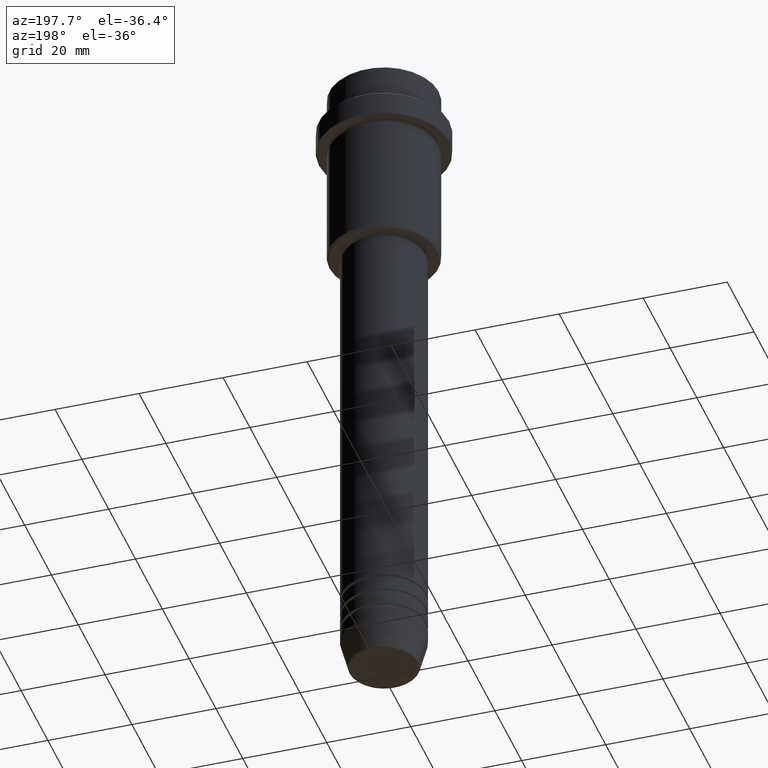
[diagram: clean part render]
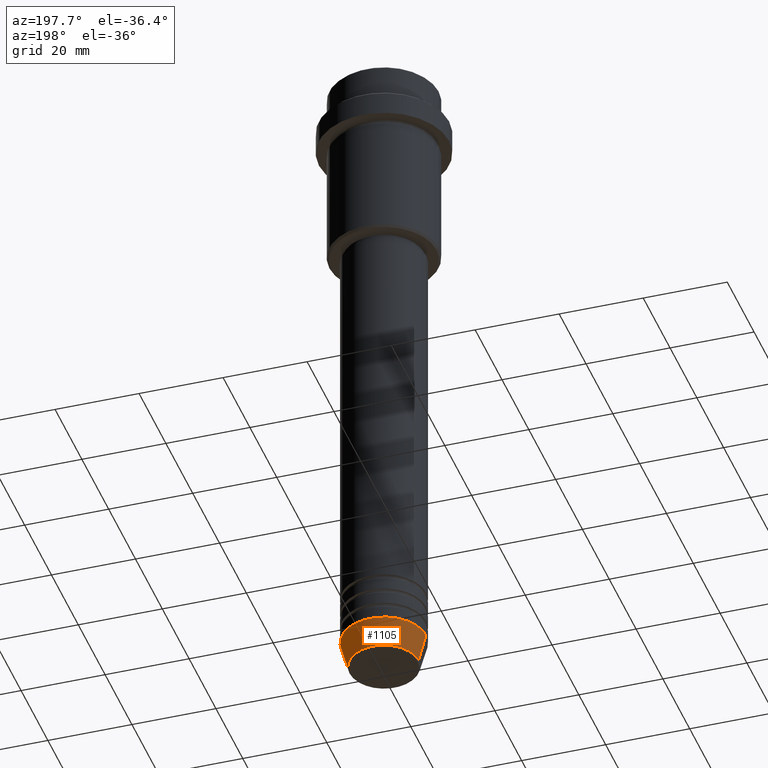
[diagram: same view with one face highlighted and labeled with its STEP entity id]
A machine part, auxiliary view. The second image highlights one B-rep face of the part: STEP entity #1105.
In plain terms, the highlighted conical surface has half-angle 15 deg.
Its self-contained STEP definition (entity closure, byte-faithful):
#7 = ORIENTED_EDGE ( 'NONE', *, *, #228, .T. ) ;
#42 = EDGE_LOOP ( 'NONE', ( #7, #966, #230, #884 ) ) ;
#95 = CARTESIAN_POINT ( 'NONE',  ( 0.000000000000000000, 0.000000000000000000, -153.0000000000000000 ) ) ;
#138 = DIRECTION ( 'NONE',  ( 1.000000000000000000, 0.000000000000000000, 0.000000000000000000 ) ) ;
#204 = AXIS2_PLACEMENT_3D ( 'NONE', #1313, #335, #138 ) ;
#208 = DIRECTION ( 'NONE',  ( -0.000000000000000000, -0.000000000000000000, 1.000000000000000000 ) ) ;
#217 = CARTESIAN_POINT ( 'NONE',  ( 0.000000000000000000, 0.000000000000000000, -153.0000000000000000 ) ) ;
#228 = EDGE_CURVE ( 'NONE', #495, #620, #627, .T. ) ;
#230 = ORIENTED_EDGE ( 'NONE', *, *, #599, .F. ) ;
#319 = VERTEX_POINT ( 'NONE', #454 ) ;
#335 = DIRECTION ( 'NONE',  ( -0.000000000000000000, -0.000000000000000000, 1.000000000000000000 ) ) ;
#336 = VECTOR ( 'NONE', #1344, 1000.000000000000114 ) ;
#454 = CARTESIAN_POINT ( 'NONE',  ( -10.00000000000000000, 1.224646799147353256E-15, -153.0000000000000000 ) ) ;
#467 = CARTESIAN_POINT ( 'NONE',  ( 10.00000000000000000, 0.000000000000000000, -153.0000000000000000 ) ) ;
#495 = VERTEX_POINT ( 'NONE', #500 ) ;
#500 = CARTESIAN_POINT ( 'NONE',  ( 8.223655072137200150, 0.000000000000000000, -159.6294095225512137 ) ) ;
#511 = LINE ( 'NONE', #1288, #1294 ) ;
#544 = DIRECTION ( 'NONE',  ( -0.2588190451025215721, 3.169619151431775418E-17, 0.9659258262890679791 ) ) ;
#599 = EDGE_CURVE ( 'NONE', #734, #319, #1242, .T. ) ;
#620 = VERTEX_POINT ( 'NONE', #1190 ) ;
#627 = CIRCLE ( 'NONE', #204, 8.223655072137200150 ) ;
#643 = DIRECTION ( 'NONE',  ( -0.000000000000000000, -0.000000000000000000, 1.000000000000000000 ) ) ;
#672 = CARTESIAN_POINT ( 'NONE',  ( 10.00000000000000000, 0.000000000000000000, -153.0000000000000000 ) ) ;
#695 = EDGE_CURVE ( 'NONE', #495, #734, #792, .T. ) ;
#719 = AXIS2_PLACEMENT_3D ( 'NONE', #95, #208, #869 ) ;
#734 = VERTEX_POINT ( 'NONE', #672 ) ;
#753 = FACE_OUTER_BOUND ( 'NONE', #42, .T. ) ;
#792 = LINE ( 'NONE', #467, #336 ) ;
#869 = DIRECTION ( 'NONE',  ( 1.000000000000000000, 0.000000000000000000, 0.000000000000000000 ) ) ;
#882 = CONICAL_SURFACE ( 'NONE', #1411, 10.00000000000000000, 0.2617993877991502960 ) ;
#884 = ORIENTED_EDGE ( 'NONE', *, *, #695, .F. ) ;
#956 = EDGE_CURVE ( 'NONE', #620, #319, #511, .T. ) ;
#966 = ORIENTED_EDGE ( 'NONE', *, *, #956, .T. ) ;
#990 = DIRECTION ( 'NONE',  ( 1.000000000000000000, 0.000000000000000000, 0.000000000000000000 ) ) ;
#1105 = ADVANCED_FACE ( 'NONE', ( #753 ), #882, .T. ) ;
#1190 = CARTESIAN_POINT ( 'NONE',  ( -8.223655072137200150, 1.115877042642912645E-15, -159.6294095225512137 ) ) ;
#1242 = CIRCLE ( 'NONE', #719, 10.00000000000000000 ) ;
#1288 = CARTESIAN_POINT ( 'NONE',  ( -10.00000000000000000, 1.224646799147353256E-15, -153.0000000000000000 ) ) ;
#1294 = VECTOR ( 'NONE', #544, 1000.000000000000114 ) ;
#1313 = CARTESIAN_POINT ( 'NONE',  ( 0.000000000000000000, 0.000000000000000000, -159.6294095225512137 ) ) ;
#1344 = DIRECTION ( 'NONE',  ( 0.2588190451025215721, 0.000000000000000000, 0.9659258262890679791 ) ) ;
#1411 = AXIS2_PLACEMENT_3D ( 'NONE', #217, #643, #990 ) ;